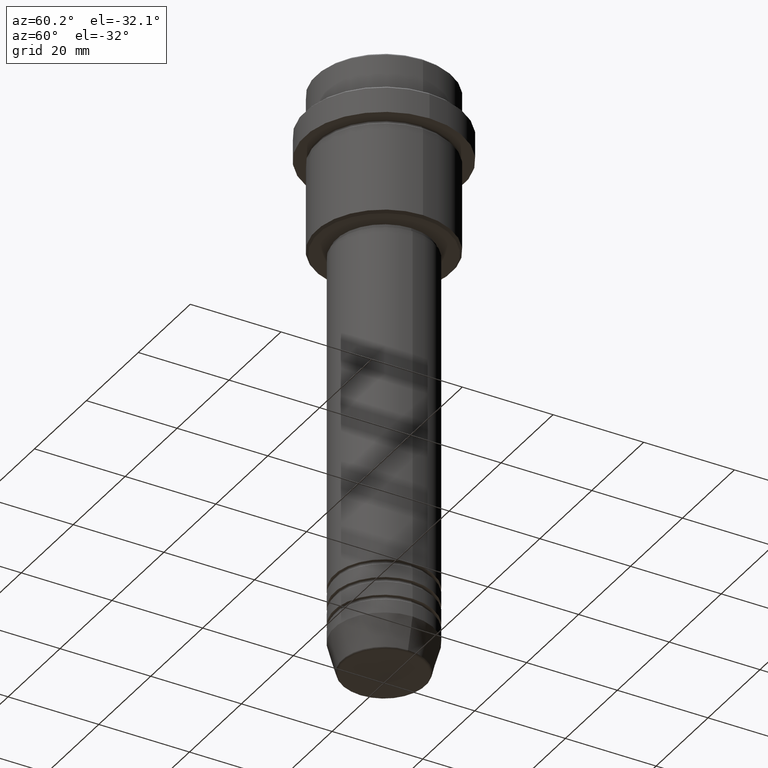
[diagram: clean part render]
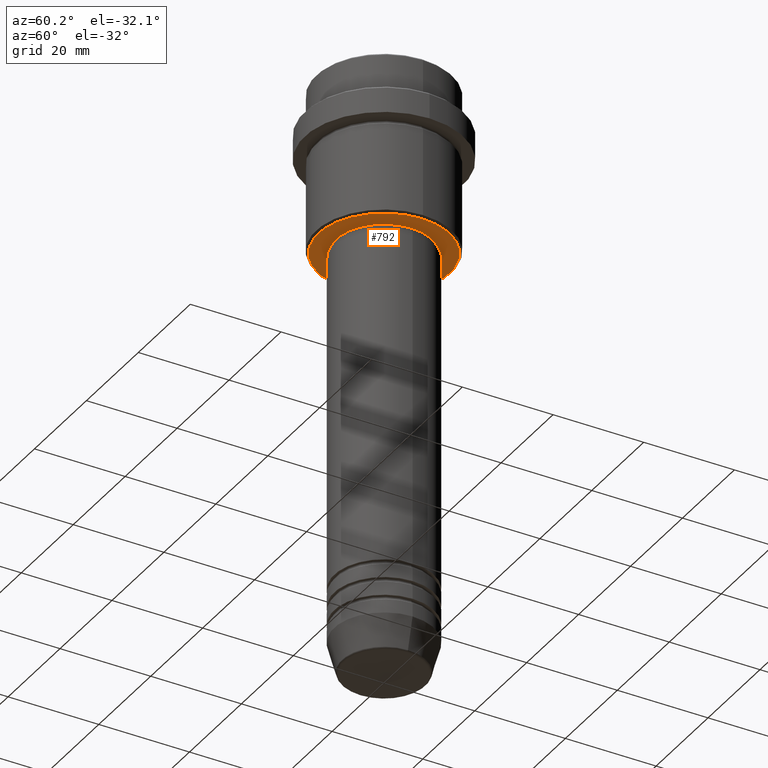
[diagram: same view with one face highlighted and labeled with its STEP entity id]
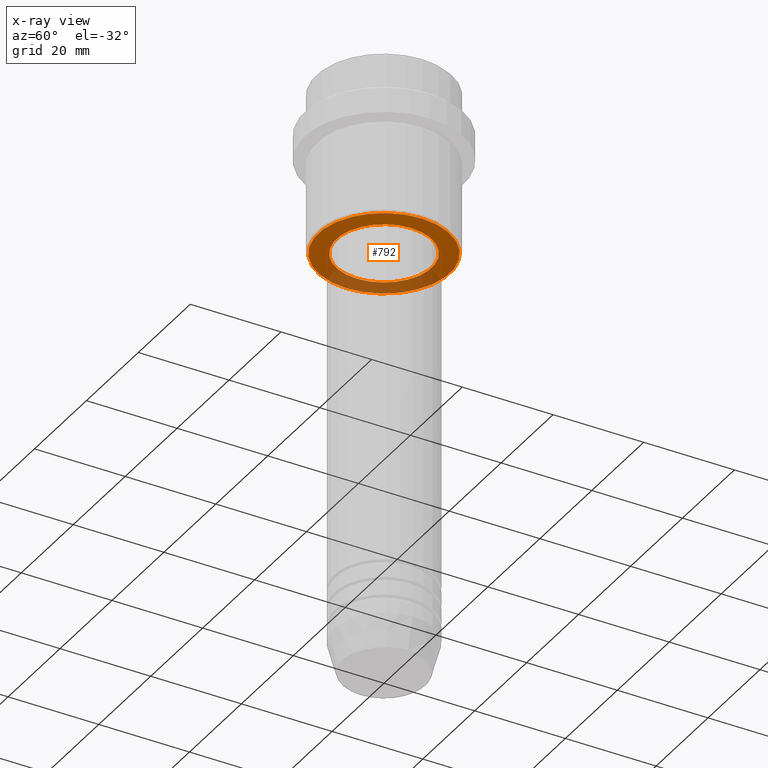
[diagram: x-ray of the same camera — body ghosted, the highlighted face saturated]
A machine part, auxiliary view. The second image highlights one B-rep face of the part: STEP entity #792.
The next image is the same camera in x-ray: the body ghosted, the highlighted face saturated — about 29% of this face is hidden behind the body in this view.
In plain terms, the highlighted planar face has unit normal (0, 0, -1).
Its self-contained STEP definition (entity closure, byte-faithful):
#12 = CIRCLE ( 'NONE', #429, 10.49999999999999289 ) ;
#25 = DIRECTION ( 'NONE',  ( -1.000000000000000000, 0.000000000000000000, 0.000000000000000000 ) ) ;
#53 = CARTESIAN_POINT ( 'NONE',  ( -14.49999999999996980, 1.806354028742344224E-15, -35.99999999999999289 ) ) ;
#78 = EDGE_CURVE ( 'NONE', #1283, #638, #12, .T. ) ;
#82 = CIRCLE ( 'NONE', #177, 14.49999999999996980 ) ;
#98 = EDGE_LOOP ( 'NONE', ( #814, #442 ) ) ;
#115 = PLANE ( 'NONE',  #576 ) ;
#177 = AXIS2_PLACEMENT_3D ( 'NONE', #226, #473, #577 ) ;
#225 = ORIENTED_EDGE ( 'NONE', *, *, #78, .T. ) ;
#226 = CARTESIAN_POINT ( 'NONE',  ( 0.000000000000000000, 0.000000000000000000, -35.99999999999999289 ) ) ;
#254 = ORIENTED_EDGE ( 'NONE', *, *, #951, .T. ) ;
#334 = CARTESIAN_POINT ( 'NONE',  ( 0.000000000000000000, 0.000000000000000000, -35.99999999999998579 ) ) ;
#342 = DIRECTION ( 'NONE',  ( 0.000000000000000000, 0.000000000000000000, -1.000000000000000000 ) ) ;
#348 = FACE_OUTER_BOUND ( 'NONE', #98, .T. ) ;
#429 = AXIS2_PLACEMENT_3D ( 'NONE', #334, #1097, #1208 ) ;
#442 = ORIENTED_EDGE ( 'NONE', *, *, #444, .T. ) ;
#444 = EDGE_CURVE ( 'NONE', #1325, #1127, #1007, .T. ) ;
#452 = AXIS2_PLACEMENT_3D ( 'NONE', #919, #1242, #25 ) ;
#470 = CARTESIAN_POINT ( 'NONE',  ( 0.000000000000000000, 0.000000000000000000, -35.99999999999998579 ) ) ;
#473 = DIRECTION ( 'NONE',  ( 0.000000000000000000, 0.000000000000000000, -1.000000000000000000 ) ) ;
#569 = FACE_BOUND ( 'NONE', #1389, .T. ) ;
#576 = AXIS2_PLACEMENT_3D ( 'NONE', #896, #342, #789 ) ;
#577 = DIRECTION ( 'NONE',  ( -1.000000000000000000, 0.000000000000000000, 0.000000000000000000 ) ) ;
#638 = VERTEX_POINT ( 'NONE', #1056 ) ;
#694 = CARTESIAN_POINT ( 'NONE',  ( 10.49999999999999289, 0.000000000000000000, -35.99999999999998579 ) ) ;
#725 = EDGE_CURVE ( 'NONE', #1127, #1325, #82, .T. ) ;
#789 = DIRECTION ( 'NONE',  ( -1.000000000000000000, 0.000000000000000000, -0.000000000000000000 ) ) ;
#792 = ADVANCED_FACE ( 'NONE', ( #348, #569 ), #115, .T. ) ;
#802 = AXIS2_PLACEMENT_3D ( 'NONE', #470, #908, #1338 ) ;
#814 = ORIENTED_EDGE ( 'NONE', *, *, #725, .T. ) ;
#864 = CIRCLE ( 'NONE', #802, 10.49999999999999289 ) ;
#896 = CARTESIAN_POINT ( 'NONE',  ( 0.000000000000000000, 15.00000000000000000, -35.99999999999999289 ) ) ;
#908 = DIRECTION ( 'NONE',  ( -0.000000000000000000, -0.000000000000000000, 1.000000000000000000 ) ) ;
#919 = CARTESIAN_POINT ( 'NONE',  ( 0.000000000000000000, 0.000000000000000000, -35.99999999999999289 ) ) ;
#951 = EDGE_CURVE ( 'NONE', #638, #1283, #864, .T. ) ;
#1007 = CIRCLE ( 'NONE', #452, 14.49999999999996980 ) ;
#1056 = CARTESIAN_POINT ( 'NONE',  ( -10.49999999999999289, 1.285879139104720042E-15, -35.99999999999998579 ) ) ;
#1097 = DIRECTION ( 'NONE',  ( -0.000000000000000000, -0.000000000000000000, 1.000000000000000000 ) ) ;
#1127 = VERTEX_POINT ( 'NONE', #1327 ) ;
#1208 = DIRECTION ( 'NONE',  ( 1.000000000000000000, 0.000000000000000000, 0.000000000000000000 ) ) ;
#1242 = DIRECTION ( 'NONE',  ( 0.000000000000000000, 0.000000000000000000, -1.000000000000000000 ) ) ;
#1283 = VERTEX_POINT ( 'NONE', #694 ) ;
#1325 = VERTEX_POINT ( 'NONE', #53 ) ;
#1327 = CARTESIAN_POINT ( 'NONE',  ( 14.49999999999996980, 0.000000000000000000, -35.99999999999999289 ) ) ;
#1338 = DIRECTION ( 'NONE',  ( 1.000000000000000000, 0.000000000000000000, 0.000000000000000000 ) ) ;
#1389 = EDGE_LOOP ( 'NONE', ( #225, #254 ) ) ;